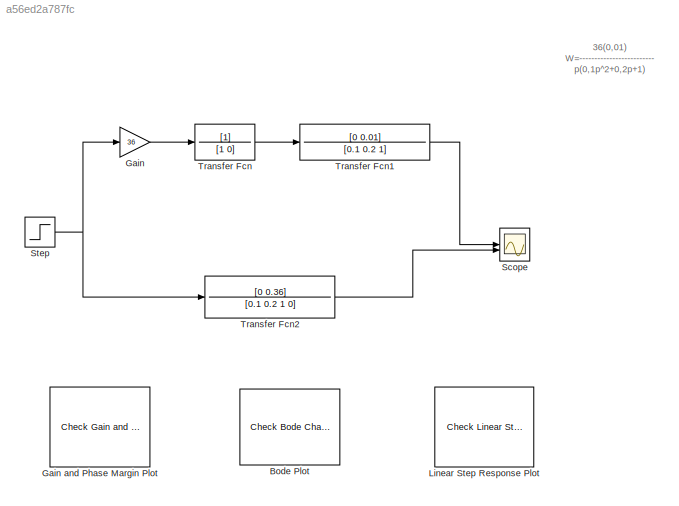
MODEL slx_a56ed2a787fc
KIND model
CONFIG AbsTol = auto
CONFIG EnableMultiTasking = off
CONFIG FixedStep = auto
CONFIG MaxStep = auto
CONFIG MinStep = auto
CONFIG RelTol = 1e-3
CONFIG SampleTimeConstraint = Unconstrained
CONFIG SolverName = VariableStepAuto
CONFIG StartTime = 0.0
CONFIG StopTime = 10.0
BLOCK [Reference] Bode Plot  REF=slctrlblks/Model Verification/Check Bode 
Characteristics
  InstantiateOnLoad = on
  SourceBlock = slctrlblks/Model Verification/Check Bode \nCharacteristics
  SourceType = Checks_Bode
BLOCK [Gain] Gain
  Gain = 36
BLOCK [Reference] Gain and Phase Margin Plot  REF=slctrlblks/Model Verification/Check Gain and Phase Margins
  InstantiateOnLoad = on
  SourceBlock = slctrlblks/Model Verification/Check Gain and Phase Margins
  SourceType = Checks_Margins
BLOCK [Reference] Linear Step Response Plot  REF=slctrlblks/Model Verification/Check Linear Step Response
Characteristics
  InstantiateOnLoad = on
  SourceBlock = slctrlblks/Model Verification/Check Linear Step Response\nCharacteristics
  SourceType = Checks_LinearStepResponse
BLOCK [Scope] Scope
  Floating = off
  NumInputPorts = 2
  ScopeSpecificationString = Simulink.scopes.TimeScopeBlockCfg('CurrentConfiguration', extmgr.ConfigurationSet(extmgr.Configuration('Core','General UI',true),extmgr.Configuration('Core','Source UI',true),extmgr.Configuration('Sources','WiredSimulink',true),extmgr.Configuration('Visuals','Time Domain',true,'SerializedDisplays',{struct('MinYLimReal','-0.441','MaxYLimReal','3.96901','YLabelReal','','MinYLimMag','0.00000','MaxYLi...<+1976ch>
BLOCK [Step] Step
  SampleTime = 0
  Time = 0
BLOCK [TransferFcn] Transfer Fcn
  Denominator = [1 0]
BLOCK [TransferFcn] Transfer Fcn1
  Denominator = [0.1 0.2 1]
  Numerator = [0 0.01]
BLOCK [TransferFcn] Transfer Fcn2
  Denominator = [0.1 0.2 1 0]
  Numerator = [0 0.36]
ANNOTATION (root): 36(0,01) W=------------------------- p(0,1p^2+0,2p+1)
LINE Gain:1 -> Transfer Fcn:1
NET Step:1 -> Gain:1, Transfer Fcn2:1
LINE Transfer Fcn1:1 -> Scope:1
LINE Transfer Fcn2:1 -> Scope:2
LINE Transfer Fcn:1 -> Transfer Fcn1:1
note: NET lines group one-source signal fan-out (src -> all destinations, sorted); 1:1 wires keep LINE
